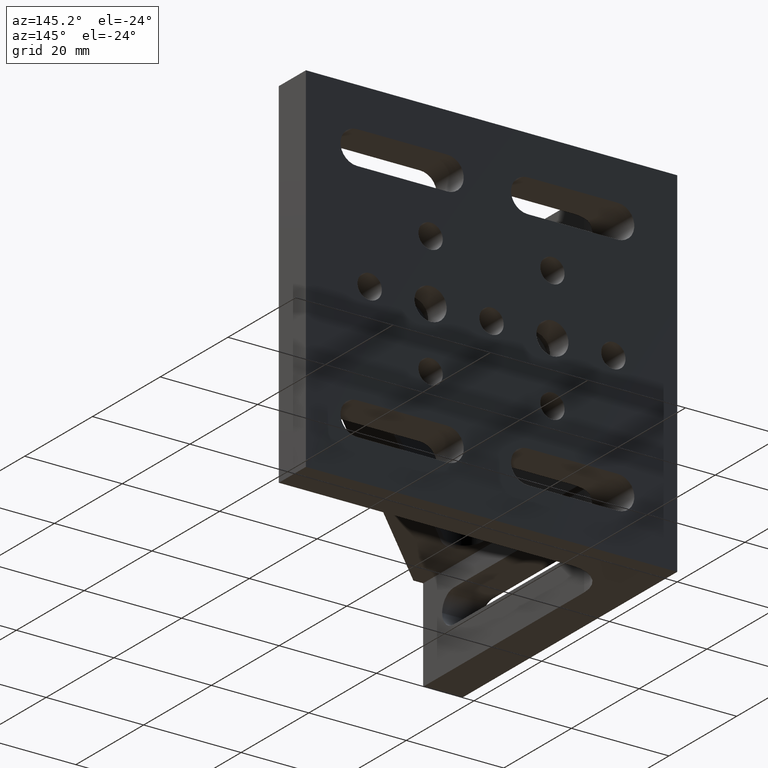
[diagram: clean part render]
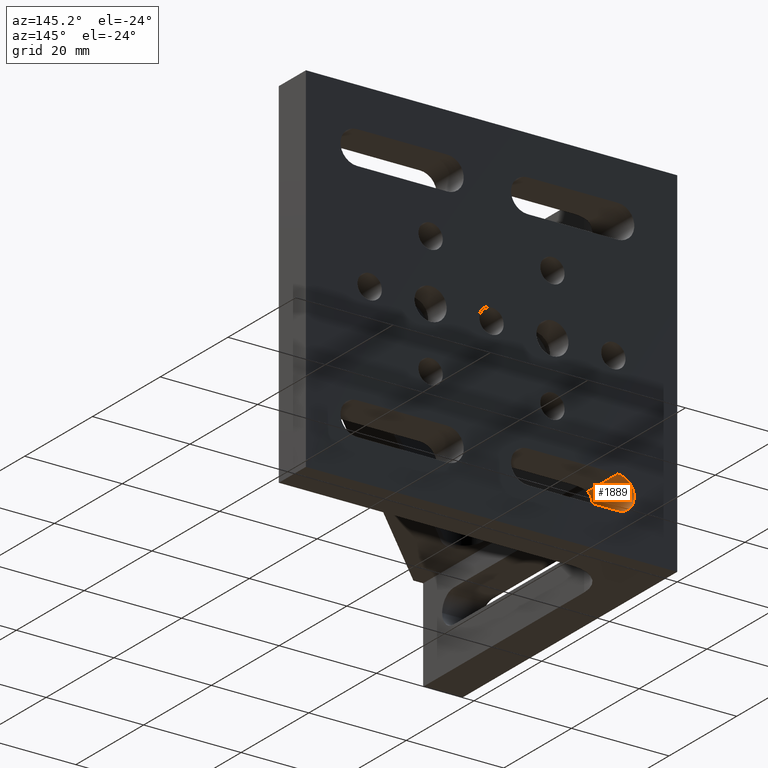
[diagram: same view with one face highlighted and labeled with its STEP entity id]
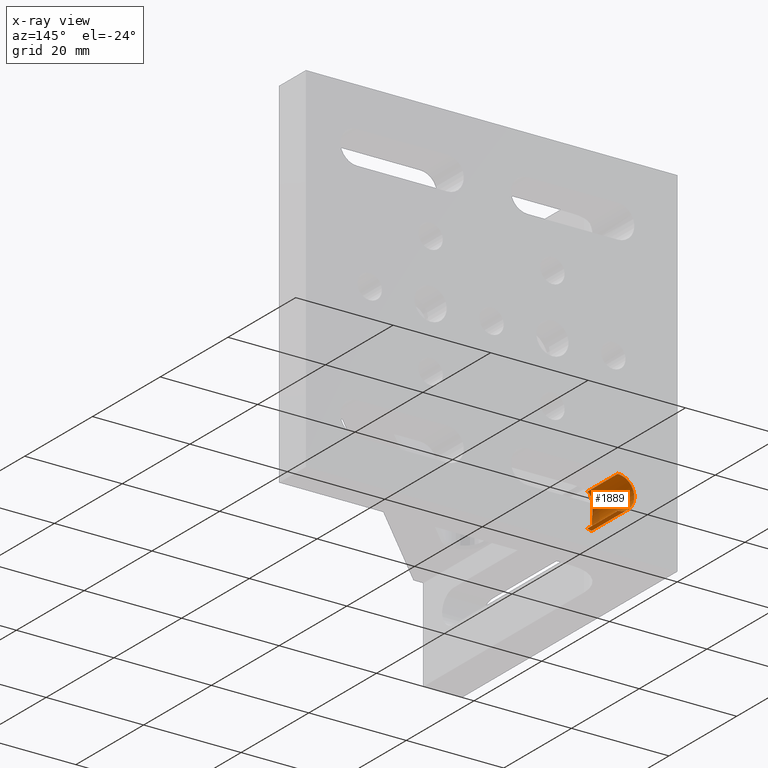
[diagram: x-ray of the same camera — body ghosted, the highlighted face saturated]
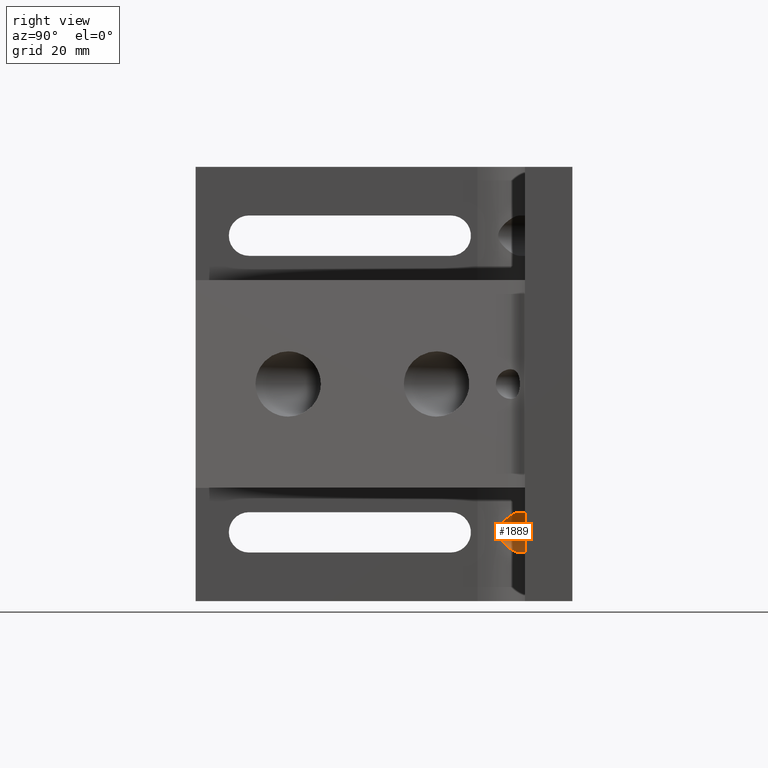
[diagram: same view with one face highlighted and labeled with its STEP entity id]
A machine part, auxiliary view. The second image highlights one B-rep face of the part: STEP entity #1889.
The next image is the same camera in x-ray: the body ghosted, the highlighted face saturated — about 8% of this face is hidden behind the body in this view.
A second angle (right view) of the same face is appended — the face is thin or edge-on in the first view.
In plain terms, the highlighted cylindrical surface (edge-blend (fillet) strip) has radius 3.4 mm, axis along (-0, 1, -0).
Its self-contained STEP definition (entity closure, byte-faithful):
#24 = CARTESIAN_POINT ( 'NONE',  ( 9.214161383967086394, -11.75904838996148882, -26.64102642130032450 ) ) ;
#25 = CIRCLE ( 'NONE', #611, 3.400000000000000355 ) ;
#45 = CARTESIAN_POINT ( 'NONE',  ( 11.72718380801243754, -9.231354422909875623, -28.37454063544542038 ) ) ;
#183 = FACE_OUTER_BOUND ( 'NONE', #547, .T. ) ;
#250 = CARTESIAN_POINT ( 'NONE',  ( 9.322671830215075062, -11.58884797383167964, -23.17680384643385594 ) ) ;
#265 = CARTESIAN_POINT ( 'NONE',  ( 11.28270983582359754, -9.518134589873769258, -21.69780726380233915 ) ) ;
#340 = CARTESIAN_POINT ( 'NONE',  ( 12.20000000000000284, 0.000000000000000000, -25.00000000000000000 ) ) ;
#498 = CARTESIAN_POINT ( 'NONE',  ( 10.68337754131114892, -10.01677199913602223, -28.05047291252071417 ) ) ;
#512 = CARTESIAN_POINT ( 'NONE',  ( 9.565753767585242429, -11.24127652561859314, -22.84041476250070346 ) ) ;
#527 = LINE ( 'NONE', #1307, #821 ) ;
#538 = EDGE_CURVE ( 'NONE', #1468, #3182, #527, .T. ) ;
#539 = CARTESIAN_POINT ( 'NONE',  ( 8.862172354396987473, -12.38678571090103020, -24.34085523677911667 ) ) ;
#547 = EDGE_LOOP ( 'NONE', ( #2553, #2452, #2189, #2636 ) ) ;
#611 = AXIS2_PLACEMENT_3D ( 'NONE', #340, #638, #1812 ) ;
#631 = CYLINDRICAL_SURFACE ( 'NONE', #967, 3.400000000000000355 ) ;
#638 = DIRECTION ( 'NONE',  ( 0.000000000000000000, 1.000000000000000000, 0.000000000000000000 ) ) ;
#736 = CARTESIAN_POINT ( 'NONE',  ( 8.948100087779915057, -12.22027625121128658, -23.97657056744030868 ) ) ;
#771 = VECTOR ( 'NONE', #2240, 1000.000000000000000 ) ;
#775 = EDGE_CURVE ( 'NONE', #1063, #2344, #2758, .T. ) ;
#780 = CARTESIAN_POINT ( 'NONE',  ( 8.840101854662526293, -12.43108542138014805, -25.53748540935995948 ) ) ;
#821 = VECTOR ( 'NONE', #2586, 1000.000000000000000 ) ;
#967 = AXIS2_PLACEMENT_3D ( 'NONE', #2404, #2928, #1616 ) ;
#973 = CARTESIAN_POINT ( 'NONE',  ( 9.323080718279657120, -11.58822328261011236, -26.82385023930099877 ) ) ;
#1004 = CARTESIAN_POINT ( 'NONE',  ( 11.71785466605101078, -9.220366740045143672, -21.60000000000000853 ) ) ;
#1012 = EDGE_CURVE ( 'NONE', #2344, #3182, #25, .T. ) ;
#1022 = CARTESIAN_POINT ( 'NONE',  ( 11.28468603753178101, -9.531821323268420798, -28.28226750917544052 ) ) ;
#1063 = VERTEX_POINT ( 'NONE', #1943 ) ;
#1232 = CARTESIAN_POINT ( 'NONE',  ( 9.699951511395928705, -11.06424185426367401, -27.31317560413135581 ) ) ;
#1248 = CARTESIAN_POINT ( 'NONE',  ( 9.074471617477223973, -11.99433205404461589, -26.34280390196943600 ) ) ;
#1307 = CARTESIAN_POINT ( 'NONE',  ( 12.20000000000000284, -63.50100000000000477, -21.60000000000000142 ) ) ;
#1468 = VERTEX_POINT ( 'NONE', #1910 ) ;
#1481 = CARTESIAN_POINT ( 'NONE',  ( 10.68629359449288430, -10.01406852210291021, -21.94792407597721962 ) ) ;
#1496 = CARTESIAN_POINT ( 'NONE',  ( 9.214759451193303974, -11.75803915928553955, -23.35768902498061195 ) ) ;
#1524 = CARTESIAN_POINT ( 'NONE',  ( 9.992257457609502680, -10.71233993374040594, -27.59362616570682647 ) ) ;
#1616 = DIRECTION ( 'NONE',  ( 0.000000000000000000, 0.000000000000000000, 1.000000000000000000 ) ) ;
#1658 = CARTESIAN_POINT ( 'NONE',  ( 12.20000000000000284, 0.000000000000000000, -21.60000000000000142 ) ) ;
#1721 = CARTESIAN_POINT ( 'NONE',  ( 10.49703597953791068, -10.18814265564622623, -27.95007889044417126 ) ) ;
#1737 = CARTESIAN_POINT ( 'NONE',  ( 9.031675833777052631, -12.06949539782675096, -26.23905043518373148 ) ) ;
#1755 = CARTESIAN_POINT ( 'NONE',  ( 8.799884518417194101, -12.51311928457463374, -24.86751233883176937 ) ) ;
#1768 = CARTESIAN_POINT ( 'NONE',  ( 9.996474145787228593, -10.70748152603393955, -22.40268404027063909 ) ) ;
#1812 = DIRECTION ( 'NONE',  ( 0.000000000000000000, 0.000000000000000000, 1.000000000000000000 ) ) ;
#1889 = ADVANCED_FACE ( 'NONE', ( #183 ), #631, .F. ) ;
#1910 = CARTESIAN_POINT ( 'NONE',  ( 12.20000000000000284, -8.960113637280786136, -21.60000000000000142 ) ) ;
#1943 = CARTESIAN_POINT ( 'NONE',  ( 12.20000000000000284, -8.960113637280786136, -28.40000000000000924 ) ) ;
#1958 = CARTESIAN_POINT ( 'NONE',  ( 12.20000000000000284, -63.50100000000000477, -28.40000000000000213 ) ) ;
#1965 = CARTESIAN_POINT ( 'NONE',  ( 11.07665326350539914, -9.689203806903160299, -28.21614999367704613 ) ) ;
#1983 = CARTESIAN_POINT ( 'NONE',  ( 8.808312165965304530, -12.49558580945549124, -25.27250641970070433 ) ) ;
#1996 = CARTESIAN_POINT ( 'NONE',  ( 8.800118008538944991, -12.51263718825120286, -25.13834996422006185 ) ) ;
#2009 = CARTESIAN_POINT ( 'NONE',  ( 10.15555614702640241, -10.53172368864921360, -22.27552505874970024 ) ) ;
#2189 = ORIENTED_EDGE ( 'NONE', *, *, #1012, .T. ) ;
#2210 = CARTESIAN_POINT ( 'NONE',  ( 10.49977494881292017, -10.18561317470748584, -22.04843276397465957 ) ) ;
#2240 = DIRECTION ( 'NONE',  ( -0.000000000000000000, 1.000000000000000000, -0.000000000000000000 ) ) ;
#2259 = CARTESIAN_POINT ( 'NONE',  ( 8.919946845432177085, -12.27485493483154144, -25.90363225038866801 ) ) ;
#2279 = CARTESIAN_POINT ( 'NONE',  ( 10.15094427378889819, -10.53659026675681432, -27.72110686039967575 ) ) ;
#2344 = VERTEX_POINT ( 'NONE', #3061 ) ;
#2354 = B_SPLINE_CURVE_WITH_KNOTS ( 'NONE', 3,
 ( #2485, #1004, #265, #1481, #2210, #2009, #1768, #2736, #512, #250, #1496, #2748, #736, #539, #3024, #3231, #1755, #1996, #1983, #780, #2961, #2259, #2500, #1737, #1248, #24, #973, #2720, #1232, #1524, #2279, #1721, #498, #1965, #1022, #45, #3004, #2527 ),
 .UNSPECIFIED., .F., .F.,
 ( 4, 2, 2, 2, 2, 2, 2, 2, 2, 2, 2, 2, 2, 2, 2, 2, 2, 2, 4 ),
 ( 0.000000000000000000, 0.001608766654578630854, 0.002413149981867942703, 0.003217533309157254769, 0.004021916636446566835, 0.004826299963735878468, 0.005630683291025190100, 0.006032874954669842013, 0.006435066618314492191, 0.006837258281959144972, 0.007239449945603794283, 0.007641641609248445328, 0.008043833272893097242, 0.008848216600182408006, 0.009652599927471720506, 0.01045698325476103474, 0.01126136658205034551, 0.01206574990933965974, 0.01287013323662897051 ),
 .UNSPECIFIED. ) ;
#2404 = CARTESIAN_POINT ( 'NONE',  ( 12.20000000000000284, -63.50100000000000477, -25.00000000000000000 ) ) ;
#2452 = ORIENTED_EDGE ( 'NONE', *, *, #775, .T. ) ;
#2485 = CARTESIAN_POINT ( 'NONE',  ( 12.20000000000000284, -8.960113637280786136, -21.60000000000000142 ) ) ;
#2500 = CARTESIAN_POINT ( 'NONE',  ( 8.954419097606141520, -12.20972324742707116, -26.01967083375840772 ) ) ;
#2527 = CARTESIAN_POINT ( 'NONE',  ( 12.20000000000000284, -8.960113637280786136, -28.40000000000000924 ) ) ;
#2553 = ORIENTED_EDGE ( 'NONE', *, *, #2576, .T. ) ;
#2576 = EDGE_CURVE ( 'NONE', #1468, #1063, #2354, .T. ) ;
#2586 = DIRECTION ( 'NONE',  ( -0.000000000000000000, 1.000000000000000000, -0.000000000000000000 ) ) ;
#2636 = ORIENTED_EDGE ( 'NONE', *, *, #538, .F. ) ;
#2720 = CARTESIAN_POINT ( 'NONE',  ( 9.566338707707295441, -11.24048035251802702, -27.16030610016537494 ) ) ;
#2736 = CARTESIAN_POINT ( 'NONE',  ( 9.701854516922040261, -11.06173735475137931, -22.68465001992653995 ) ) ;
#2748 = CARTESIAN_POINT ( 'NONE',  ( 9.027267414705555382, -12.07384139733268746, -23.75797970422394201 ) ) ;
#2758 = LINE ( 'NONE', #1958, #771 ) ;
#2928 = DIRECTION ( 'NONE',  ( -0.000000000000000000, 1.000000000000000000, -0.000000000000000000 ) ) ;
#2961 = CARTESIAN_POINT ( 'NONE',  ( 8.862955957816934571, -12.38524402372803657, -25.66290044596703979 ) ) ;
#3004 = CARTESIAN_POINT ( 'NONE',  ( 11.95989565424810230, -9.089717506838820071, -28.40000000000000213 ) ) ;
#3024 = CARTESIAN_POINT ( 'NONE',  ( 8.839292404362987909, -12.43271749198102860, -24.46800739583048312 ) ) ;
#3061 = CARTESIAN_POINT ( 'NONE',  ( 12.20000000000000284, 0.000000000000000000, -28.40000000000000213 ) ) ;
#3182 = VERTEX_POINT ( 'NONE', #1658 ) ;
#3231 = CARTESIAN_POINT ( 'NONE',  ( 8.808194087229075819, -12.49583598054186595, -24.72976986778746067 ) ) ;